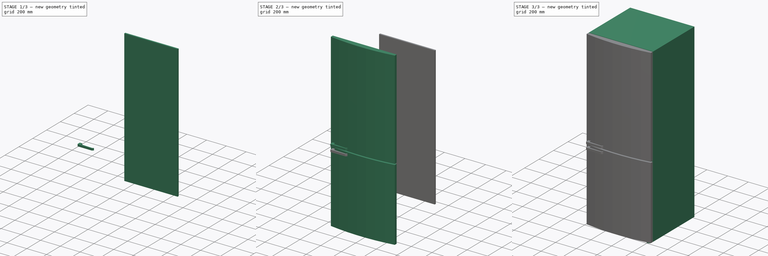
[diagram: build sequence overview — one tinted view per stage of 3, left to right]
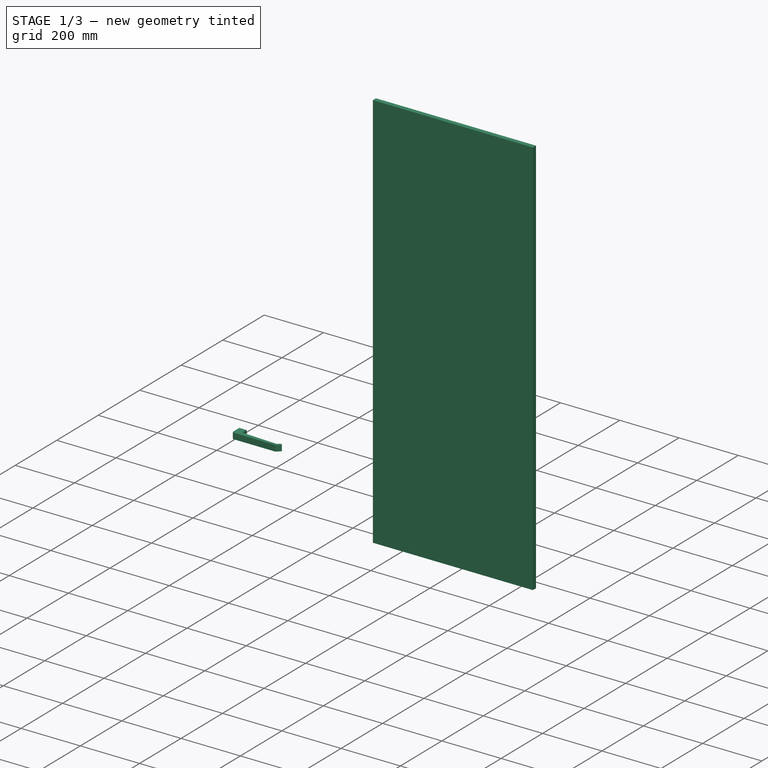
[diagram: stage 1 of 3 — iso view after this stage's code; geometry added in this stage tinted green]
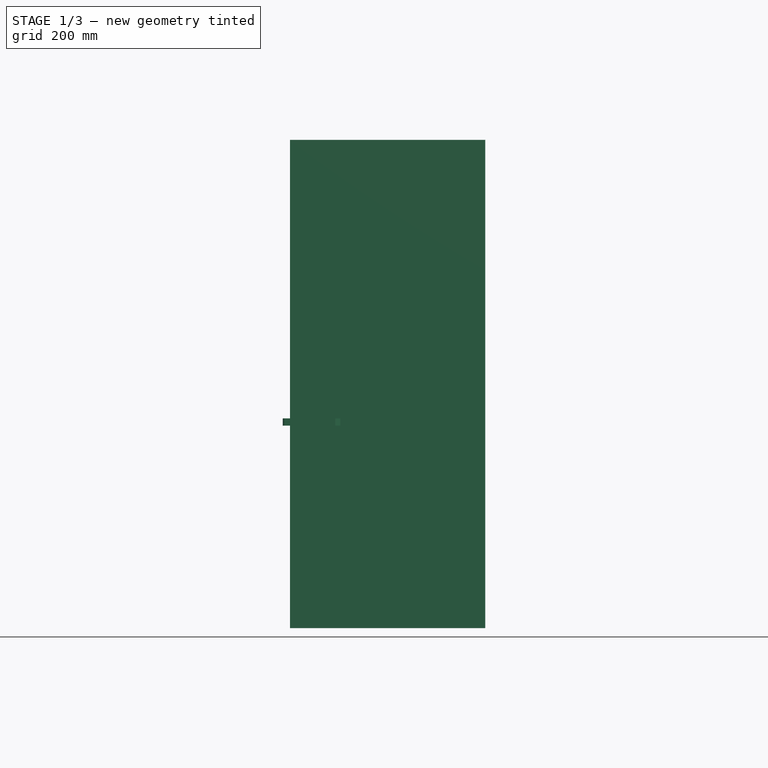
[diagram: stage 1 of 3 — front view after this stage's code; geometry added in this stage tinted green]
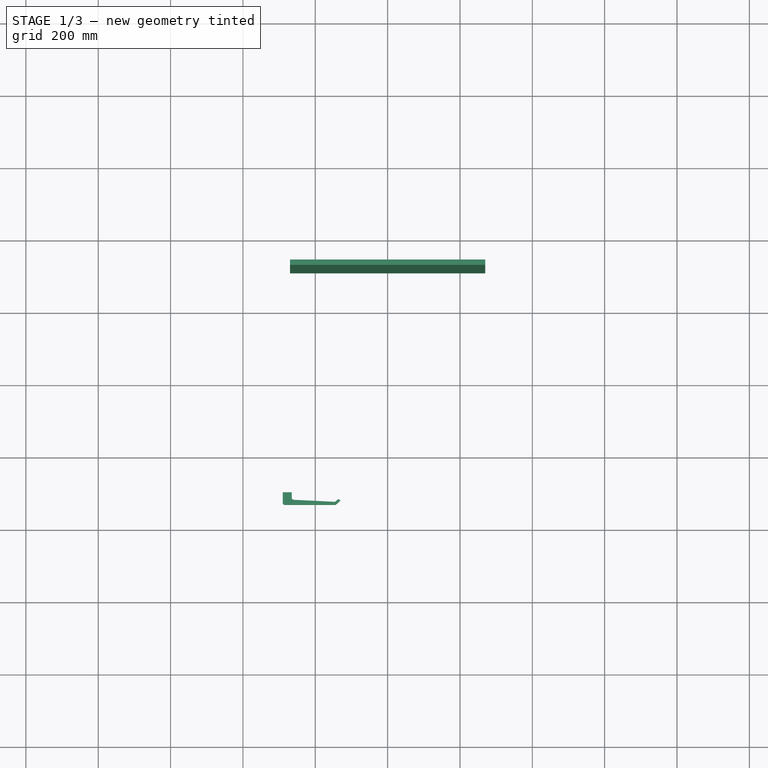
[diagram: stage 1 of 3 — top view after this stage's code; geometry added in this stage tinted green]
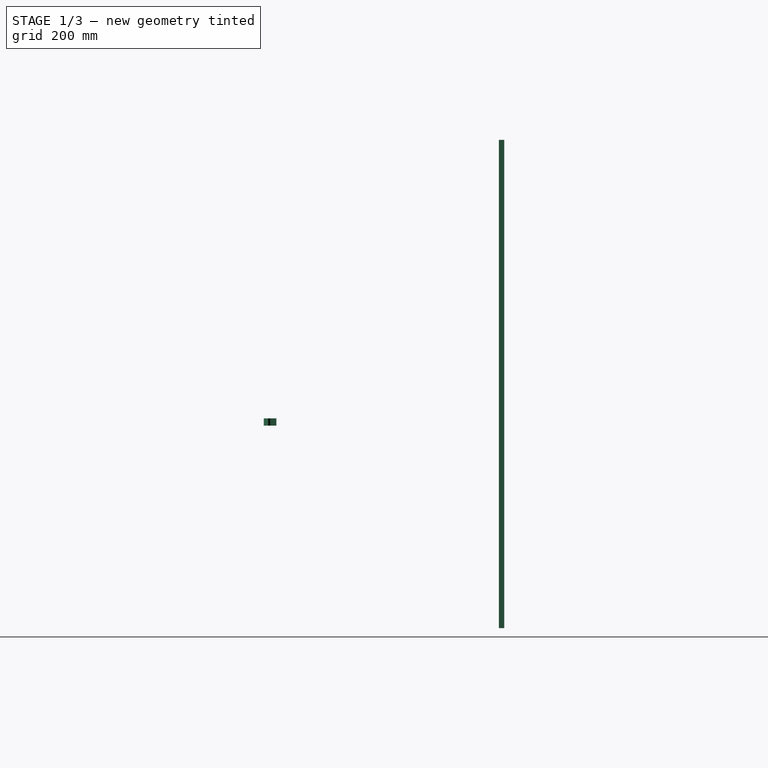
[diagram: stage 1 of 3 — right view after this stage's code; geometry added in this stage tinted green]
FCSTD DOCUMENT  (FreeCAD 0.21R33771 (Git))
Label: Refrigerator_R02
License: All rights reserved
LicenseURL: https://en.wikipedia.org/wiki/All_rights_reserved
objects: App::DocumentObjectGroup×10, App::FeaturePython×7, Part::Extrusion×7, Sketcher::SketchObject×6, App::MaterialObjectPython×5, App::TextDocument×2, App::DocumentObjectGroupPython×1, Spreadsheet::Sheet×1, Part::Feature×1
note: 20 computed .brp shape members not serialized (recipe doc carries the construction recipe); baked Part::Feature solids carry a one-line shape summary decoded from their .brp

FEATURE [Sketcher::SketchObject] Sketch025
  ExternalGeometry = -> [Sketch022]
  FullyConstrained = true
  MapMode = 2
  Support = -> [Sketch022]
  expr: .Constraints.Retreat_1 = Prop.Rear_panel_B_Retreat
  expr: .Constraints.Retreat_2 = Prop.Rear_panel_B_Retreat
  expr: .Constraints.Thickness = Prop.Rear_panel_B_Thickness
  sketch-geometry (4):
    g0: LineSegment StartX=-270 StartY=325 StartZ=0 EndX=270 EndY=325 EndZ=0
    g1: LineSegment StartX=270 StartY=325 StartZ=0 EndX=270 EndY=310 EndZ=0
    g2: LineSegment StartX=270 StartY=310 StartZ=0 EndX=-270 EndY=310 EndZ=0
    g3: LineSegment StartX=-270 StartY=310 StartZ=0 EndX=-270 EndY=325 EndZ=0
  constraints (12):
    c: Coincident(g0,g1)
    c: Coincident(g1,g2)
    c: Coincident(g2,g3)
    c: Coincident(g3,g0)
    c: Horizontal(g0)
    c: Horizontal(g2)
    c: Vertical(g1)
    c: Vertical(g3)
    c: PointOnObject(g0,g-3)
    c: DistanceX(g-3,g0) = 40  'Retreat_1'
    c: DistanceX(g0,g-3) = 40  'Retreat_2'
    c: DistanceY(g1,g1) = 15  'Thickness'
FEATURE [Part::Extrusion] Extrude004  label="06-Rear_"
  Base = -> Sketch025
  Dir = (0,0,1)
  DirMode = 2
  FaceMakerClass = Part::FaceMakerBullseye
  LengthFwd = 1350
  LengthRev = 0
  Material = -> Material014
  Placement = pos=(0,0,150) rot=(0,0,1;0rad)
  Solid = true
  Symmetric = false
  expr: LengthFwd = Prop.Base_dimensions_B_Height - .Placement.Base.z - 200 mm
  expr: Material = Prop.Rear_panel_C_Material
  expr: Visibility = Prop.Visualization_A_Visualization
FEATURE [Sketcher::SketchObject] Sketch026
  AttachmentOffset = pos=(-290,-305,0) rot=(0,1,0;0rad)
  FullyConstrained = true
  MapMode = 2
  Placement = pos=(-290,-305,0) rot=(0,0,1;0rad)
  Support = -> [Sketch022]
  expr: .AttachmentOffset.Base.x = -Prop.Base_dimensions_B_Width / 2 + Prop.Handles_B_Position_horizontal
  expr: .AttachmentOffset.Base.y = -Prop.Base_dimensions_B_Depth / 2 - Prop.Handles_B_Position_depth
  expr: MapReversed = Prop.Handles_A_Right_position
  sketch-geometry (14):
    g0: LineSegment StartX=0 StartY=0 StartZ=0 EndX=25 EndY=0 EndZ=0
    g1: LineSegment StartX=25 StartY=0 StartZ=0 EndX=25 EndY=-15.0072 EndZ=0
    g2: LineSegment StartX=30.7069 StartY=-21 StartZ=0 EndX=142.573 EndY=-26.4712 EndZ=0
    g3: LineSegment StartX=146.869 StartY=-24.9484 StartZ=0 EndX=153.127 EndY=-19.3453 EndZ=0
    g4: LineSegment StartX=144 StartY=-35 StartZ=0 EndX=6 EndY=-35 EndZ=0
    g5: LineSegment StartX=0 StartY=-29 StartZ=0 EndX=0 EndY=0 EndZ=0
    g6: LineSegment StartX=148.002 StartY=-33.4701 StartZ=0 EndX=159.178 EndY=-23.4644 EndZ=0
    g7: LineSegment StartX=158.997 StartY=-21.846 StartZ=0 EndX=154.281 EndY=-19.2168 EndZ=0
    g8: ArcOfCircle CenterX=6 CenterY=-29 CenterZ=0 NormalX=0 NormalY=0 NormalZ=1 AngleXU=0 Radius=6 StartAngle=3.14159 EndAngle=4.71239
    g9: ArcOfCircle CenterX=31 CenterY=-15.0072 CenterZ=0 NormalX=0 NormalY=0 NormalZ=1 AngleXU=0 Radius=6 StartAngle=3.14159 EndAngle=4.66352
    g10: ArcOfCircle CenterX=142.866 CenterY=-20.4783 CenterZ=0 NormalX=0 NormalY=0 NormalZ=1 AngleXU=0 Radius=6 StartAngle=4.66352 EndAngle=5.44262
    g11: ArcOfCircle CenterX=144 CenterY=-29 CenterZ=0 NormalX=0 NormalY=0 NormalZ=1 AngleXU=0 Radius=6 StartAngle=4.71239 EndAngle=5.44262
    g12: ArcOfCircle CenterX=153.794 CenterY=-20.0903 CenterZ=0 NormalX=0 NormalY=0 NormalZ=1 AngleXU=0 Radius=1 StartAngle=1.06229 EndAngle=2.30103
    g13: ArcOfCircle CenterX=158.51 CenterY=-22.7194 CenterZ=0 NormalX=0 NormalY=0 NormalZ=1 AngleXU=0 Radius=1 StartAngle=5.44262 EndAngle=7.34547
  constraints (36):
    c: Horizontal(g0)
    c: Coincident(g0,g1)
    c: Vertical(g1)
    c: Horizontal(g4)
    c: Coincident(g5,g0)
    c: Vertical(g5)
    c: Tangent(g5,g8) = 1.5708
    c: Tangent(g4,g8) = 1.5708
    c: Tangent(g1,g9) = -1.5708
    c: Tangent(g2,g9) = -1.5708
    c: Tangent(g2,g10) = -1.5708
    c: Tangent(g3,g10) = -1.5708
    c: Tangent(g4,g11) = 1.5708
    c: Tangent(g6,g11) = -1.5708
    c: Tangent(g3,g12) = 1.5708
    c: Tangent(g7,g12) = -1.5708
    c: Tangent(g6,g13) = -1.5708
    c: Tangent(g7,g13) = -1.5708
    c: DistanceX(g0,g0) = 25
    c: Equal(g8,g11)
    c: Radius(g8) = 6
    c: Equal(g12,g13)
    c: Radius(g12) = 1
    c: Equal(g10,g9)
    c: Radius(g10) = 6
    c: DistanceY(g4,g0) = 35  'Width'
    c: Angle(g2) = -0.0488692
    c: DistanceY(g2,g0) = 21
    c: Distance(g2) = 112
    c: Distance(g3) = 8.4
    c: Distance(g6) = 15
    c: Distance(g7) = 5.4
    c: Parallel(g3,g6)
    c: Coincident(g0,g-1)
    c: DistanceX(g5,g6) = 159.178  'Lenght'
    c: DistanceX(g4,g4) = 138
FEATURE [Part::Extrusion] Extrude005  label="05-Handle_01_"
  Base = -> Sketch026
  Dir = (0,0,1)
  DirMode = 2
  FaceMakerClass = Part::FaceMakerBullseye
  LengthFwd = 20
  LengthRev = 0
  Material = -> Material014
  Placement = pos=(0,0,720) rot=(0,1,0;0rad)
  Solid = true
  Symmetric = true
  expr: .Placement.Base.z = Prop.Front_panels_B_Inferior_panels_height + Prop.Feet_B_Height - LengthFwd / 2 - Prop.Handles_B_Position_vertical_inferior_handles
  expr: Material = Prop.Handles_C_Material
  expr: Visibility = Prop.Visualization_A_Visualization
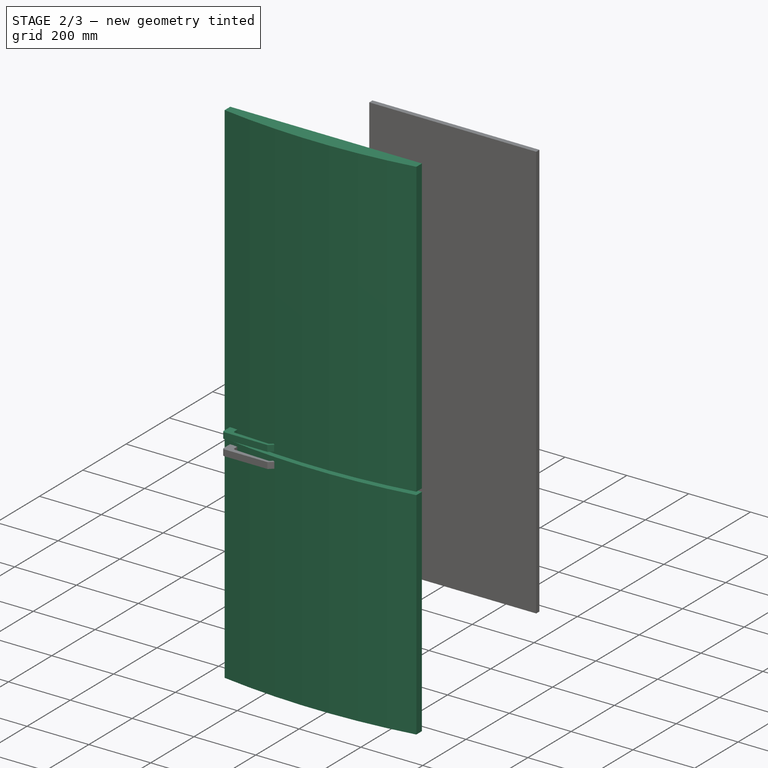
[diagram: stage 2 of 3 — iso view after this stage's code; geometry added in this stage tinted green]
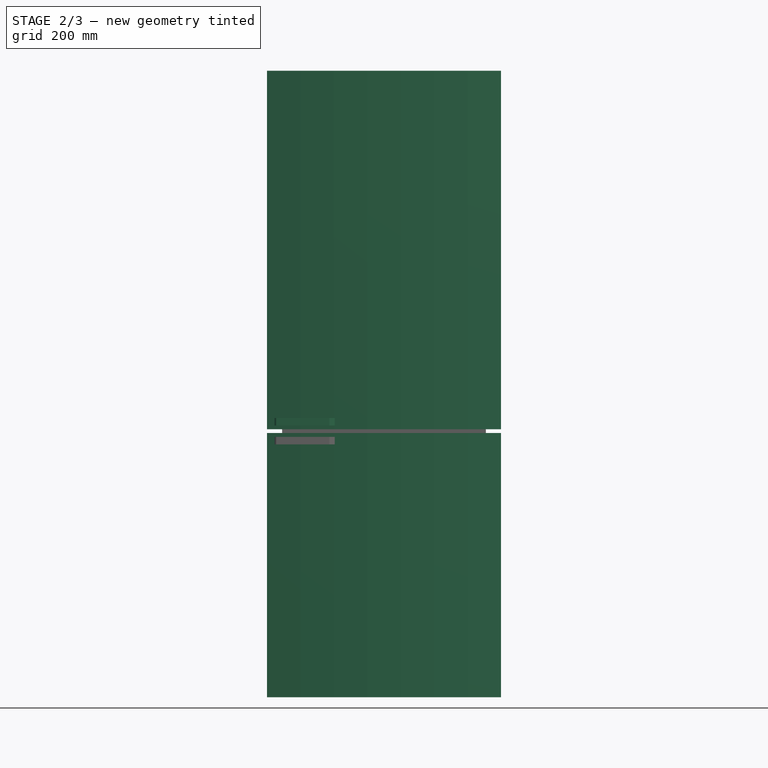
[diagram: stage 2 of 3 — front view after this stage's code; geometry added in this stage tinted green]
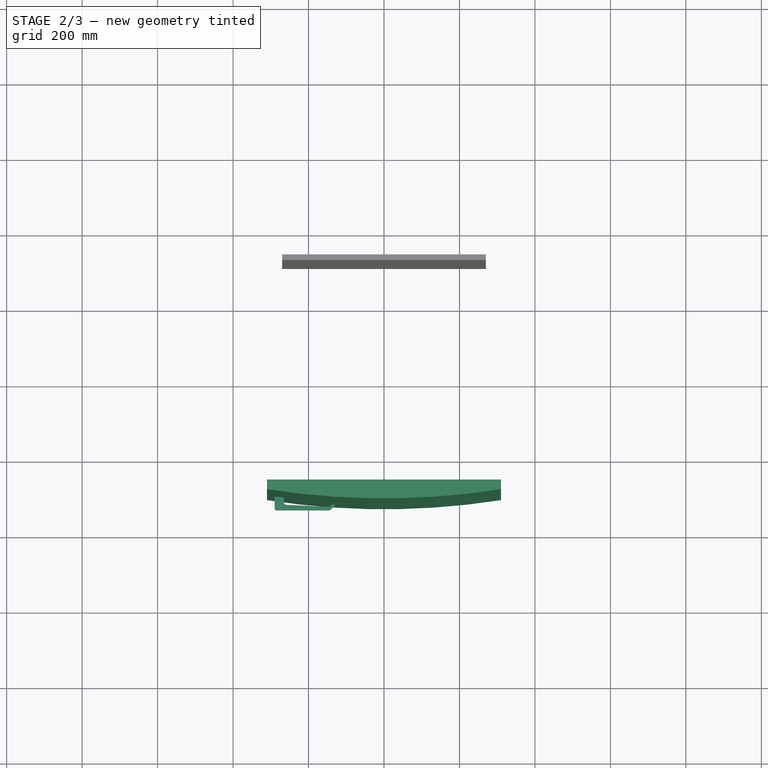
[diagram: stage 2 of 3 — top view after this stage's code; geometry added in this stage tinted green]
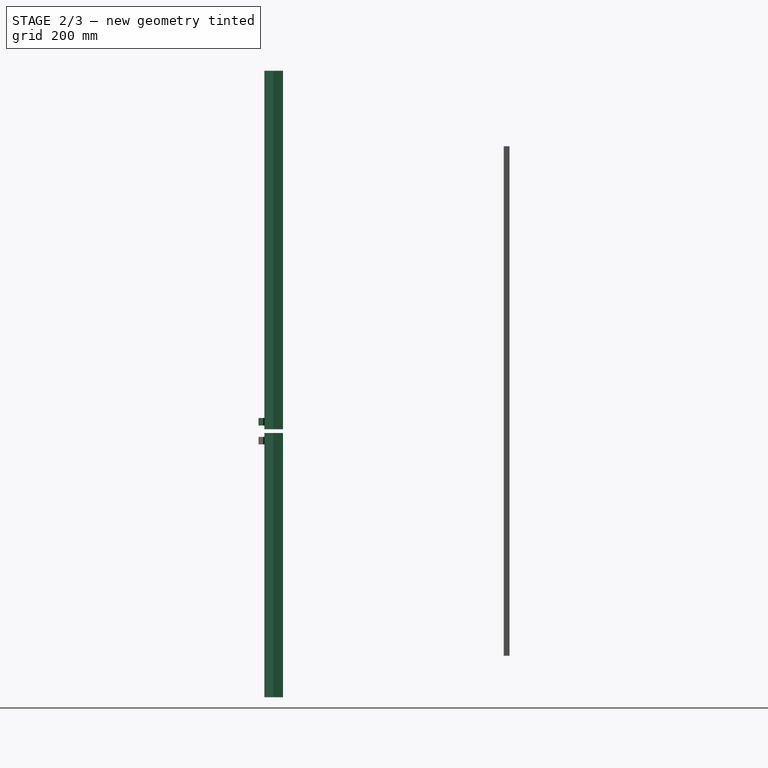
[diagram: stage 2 of 3 — right view after this stage's code; geometry added in this stage tinted green]
FEATURE [Part::Extrusion] Extrude006  label="05-Handle_02"
  Base = -> Sketch026
  Dir = (0,0,1)
  DirMode = 2
  FaceMakerClass = Part::FaceMakerBullseye
  LengthFwd = 20
  LengthRev = 0
  Material = -> Material014
  Placement = pos=(0,0,770) rot=(0,1,0;0rad)
  Solid = true
  Symmetric = true
  expr: .Placement.Base.z = Prop.Front_panels_B_Inferior_panels_height + Prop.Feet_B_Height + Prop.Front_panels_B_Gap_between_panels + LengthFwd / 2 + Prop.Handles_B_Position_vertical_superior_handles
  expr: Material = Prop.Handles_C_Material
  expr: Visibility = Prop.Visualization_A_Visualization
FEATURE [Sketcher::SketchObject] Sketch027
  ExternalGeometry = -> [Sketch022]
  FullyConstrained = true
  MapMode = 2
  Support = -> [Sketch022]
  expr: .Constraints.Thickness = Prop.Front_panels_B_Thickness
  sketch-geometry (4):
    g0: LineSegment StartX=310 StartY=-300.829 StartZ=0 EndX=310 EndY=-275 EndZ=0
    g1: LineSegment StartX=310 StartY=-275 StartZ=0 EndX=-310 EndY=-275 EndZ=0
    g2: LineSegment StartX=-310 StartY=-275 StartZ=0 EndX=-310 EndY=-300.829 EndZ=0
    g3: ArcOfCircle CenterX=0 CenterY=1675 CenterZ=0 NormalX=0 NormalY=0 NormalZ=1 AngleXU=0 Radius=2000 StartAngle=4.55676 EndAngle=4.86802
  constraints (13):
    c: Coincident(g0,g1)
    c: Coincident(g1,g2)
    c: Horizontal(g1)
    c: Vertical(g0)
    c: Vertical(g2)
    c: PointOnObject(g0,g-4)
    c: PointOnObject(g3,g-2)
    c: Coincident(g3,g2)
    c: Coincident(g3,g0)
    c: PointOnObject(g1,g-3)
    c: Radius(g3) = 2000  'Raius'
    c: Tangent(g3,g-5)
    c: DistanceY(g-5,g0) = 50  'Thickness'
FEATURE [Part::Extrusion] Extrude007  label="02-Front_inferior_panel_02"
  Base = -> Sketch027
  Dir = (0,0,1)
  DirMode = 2
  FaceMakerClass = Part::FaceMakerBullseye
  LengthFwd = 700
  LengthRev = 0
  Material = -> Material042
  Placement = pos=(0,0,40) rot=(0,0,1;0rad)
  Solid = true
  Symmetric = false
  expr: .Placement.Base.z = Prop.Feet_B_Height
  expr: LengthFwd = Prop.Front_panels_B_Inferior_panels_height
  expr: Material = Prop.Front_panels_C_Material
  expr: Visibility = Prop.Visualization_A_Visualization
FEATURE [Part::Extrusion] Extrude008  label="03-Front_superior_panel_02"
  Base = -> Sketch027
  Dir = (0,0,1)
  DirMode = 2
  FaceMakerClass = Part::FaceMakerBullseye
  LengthFwd = 950
  LengthRev = 0
  Material = -> Material042
  Placement = pos=(0,0,750) rot=(0,0,1;0rad)
  Solid = true
  Symmetric = false
  expr: .Placement.Base.z = Prop.Feet_B_Height + Prop.Front_panels_B_Inferior_panels_height + Prop.Front_panels_B_Gap_between_panels
  expr: LengthFwd = Prop.Base_dimensions_B_Height - (Prop.Feet_B_Height + Prop.Front_panels_B_Inferior_panels_height + Prop.Front_panels_B_Gap_between_panels)
  expr: Material = Prop.Front_panels_C_Material
  expr: Visibility = Prop.Visualization_A_Visualization
FEATURE [Spreadsheet::Sheet] Spreadsheet003  label="Refrigerator_outputs_#_"
  cells = A1='Description:; A2==<<Refrigerator of %s x %s x %s>> % tuple(Prop.Base_dimensions_B_Width; Prop.Base_dimensions_B_Depth; Prop.Base_dimensions_B_Height) + << in width, depth and height, compound of a body of %s>> % Prop.Body_C_Material.Label + <<, two front doors of %s>> % Prop.Front_panels_C_Material.Label + <<, and handles of %s>> % Prop.Handles_C_Material.Label + <<.>>; A4='Parts; B4='L; C4='H; D4='W; E4='T; F4='D; G4='Depth; H4='Materials; I4='Quantities; A5='01-Body; C5==Prop.Base_dimensions_B_Height - Prop.Feet_B_Height; D5==Prop.Base_dimensions_B_Width; G5==Prop.Base_dimensions_B_Depth; H5==Prop.Body_C_Material.Label; I5=1; A6='02-Inferior front panels; C6==Prop.Front_panels_B_Inferior_panels_height; D6==Prop.Base_dimensions_B_Width; E6==Prop.Front_panels_B_Thickness; H6==Prop.Front_panels_C_Material.Label; I6=1; A7='03-Superior front panels; C7==Prop.Base_dimensions_B_Height - (Prop.Feet_B_Height + Prop.Front_panels_B_Inferior_panels_height + Prop.Front_panels_B_Gap_between_panels); D7==Prop.Base_dimensions_B_Height - (Prop.Feet_B_Height + Prop.Front_panels_B_Inferior_panels_height + Prop.Front_panels_B_Gap_between_panels); E7==Prop.Front_panels_B_Thickness; H7==Prop.Front_panels_C_Material.Label; I7=1; A8='04-Feet; C8==Prop.Feet_B_Height; F8==Sketch024.Constraints.Radius * 2; H8==Prop.Feet_C_Material.Label; I8=4; A9='05-Panel handles; B9==Sketch026.Constraints.Lenght; C9==Extrude005.LengthFwd; D9==Sketch026.Constraints.Width; H9==Prop.Handles_C_Material.Label; I9=2; A10='06-Rear panel; C10==Prop.Base_dimensions_B_Height - Extrude004.Placement.Base.z - 200 mm; D10==Prop.Base_dimensions_B_Width - Sketch025.Constraints.Retreat_1 - Sketch025.Constraints.Retreat_2; E10==Prop.Rear_panel_B_Thickness; H10==Prop.Rear_panel_C_Material.Label; I10=1
FEATURE [App::TextDocument] Text_document  label="Guidelines_refrigerator_file_configurations_"
  Text = Some guidelines for using this component file.\n-----------------------------------------\n\n1. Basic workflow for component configuration (see video)\n\nThrough the properties window ("01-Prop_Refrigerator_configurations_#_") it is possible to configure the basic dimensions of the component (height, length, and depth) and its parts such as panels (inferior, superior, and rear), and handles, as well their respective materials.\n\n2. Component insertion\n\nOpen the "02-Elements_to_move_rotate" folder and select the "Refrigerator_base_move_rotate_#_" Sketch. If you are going to use the 2D projections of the component in your project, also select the sections from the “Sections” folder as needed (for plans, sections, and views).\n\nDrag the selection to the final insertion position of the component in the project, rotating it later if necessary. Make new configurations of the component if necessary.\n\n3. To generate the corresponding 2D projections, use the pre-established sections by adding the necessary objects to them and click on "Shape 2D view" (Draft_Shape2DView).\n\n4. Cautions:\n\n4.1. Set dimensions and quantities close to those used in reality, otherwise it could destroy the structure of a piece or the assembly itself.\n\n4.2. Where applicable, one of the main considerations when configuring arrays is to avoid accidentally assign large values ​​(hundreds or thousands) for the quantities of parts of the part, for example.\n\n4.4. When searching for a profile or material, use the folder according to the type one is looking for, this will make the task much easier. Materials, for example, are organized into different groups (see video).
FEATURE [App::TextDocument] Text_document001  label="Guidelines_new_objects_properties_"
  Text = <blob: 2847 chars omitted>
FEATURE [App::DocumentObjectGroup] Group248  label="03-Component_parts_"
  Group = -> [Extrude,Extrude007,Extrude008,Extrude003,Extrude005,Extrude006,Extrude004]
FEATURE [App::FeaturePython] Section  label="Section_Plan_01"  # WARN: FeaturePython — macro-defined, semantics opaque (R4)
  Clip = false
  Depth = 0
  Objects = -> [Group248]
  OnlySolids = true
  Placement = pos=(0,0,500) rot=(0,0,1;0rad)
  UseMaterialColorForFill = false
FEATURE [App::FeaturePython] Section001  label="Section001_Plan_02"  # WARN: FeaturePython — macro-defined, semantics opaque (R4)
  Clip = false
  Depth = 0
  Objects = -> [Group248]
  OnlySolids = true
  Placement = pos=(0,0,2100) rot=(0,0,1;0rad)
  UseMaterialColorForFill = false
FEATURE [App::FeaturePython] Section002  label="Section002_Lateral_01"  # WARN: FeaturePython — macro-defined, semantics opaque (R4)
  Clip = false
  Depth = 0
  Objects = -> [Group248]
  OnlySolids = true
  Placement = pos=(1500,0,600) rot=(0.57735,0.57735,0.57735;2.0944rad)
  UseMaterialColorForFill = false
FEATURE [App::FeaturePython] Section003  label="Section003_Transversal"  # WARN: FeaturePython — macro-defined, semantics opaque (R4)
  Clip = false
  Depth = 0
  Objects = -> [Group248]
  OnlySolids = true
  Placement = pos=(0,0,600) rot=(0.57735,0.57735,0.57735;2.0944rad)
  UseMaterialColorForFill = false
FEATURE [App::FeaturePython] Section004  label="Section004_Lateral_02"  # WARN: FeaturePython — macro-defined, semantics opaque (R4)
  Clip = false
  Depth = 0
  Objects = -> [Group248]
  OnlySolids = true
  Placement = pos=(-1500,0,600) rot=(-0.57735,0.57735,0.57735;4.18879rad)
  UseMaterialColorForFill = false
FEATURE [App::FeaturePython] Section005  label="Section005_Frontal_"  # WARN: FeaturePython — macro-defined, semantics opaque (R4)
  Clip = false
  Depth = 0
  Objects = -> [Group248]
  OnlySolids = true
  Placement = pos=(0,-1300,600) rot=(1,0,0;1.5708rad)
  UseMaterialColorForFill = false
FEATURE [App::DocumentObjectGroup] Group001  label="Section"
  Group = -> [Section,Section001,Section002,Section003,Section004,Section005]
FEATURE [App::DocumentObjectGroup] Group247  label="02-Elements_to_move_rotate"
  Group = -> [Sketch022,Group001]
FEATURE [App::DocumentObjectGroup] Group249  label="04-Spreadsheet_"
  Group = -> [Spreadsheet003]
FEATURE [App::DocumentObjectGroup] Group250  label="05-Guidelines_"
  Group = -> [Text_document001,Text_document]
FEATURE [App::DocumentObjectGroup] Group251  label="06-Materials_"
  Group = -> [MaterialContainer]
FEATURE [Part::Feature] Prop  label="01-Prop_Refrigerator_configurations_#_"
  Base_dimensions_B_Depth = 650
  Base_dimensions_B_Height = 1700
  Base_dimensions_B_Width = 620
  Body_C_Material = -> Material042
  Feet_B_Height = 40
  Feet_C_Material = -> Material014
  Front_panels_B_Gap_between_panels = 10
  Front_panels_B_Inferior_panels_height = 700
  Front_panels_B_Thickness = 50
  Front_panels_C_Material = -> Material042
  Handles_A_Right_position = false
  Handles_B_Position_depth = -20
  Handles_B_Position_horizontal = 20
  Handles_B_Position_vertical_inferior_handles = 10
  Handles_B_Position_vertical_superior_handles = 10
  Handles_C_Material = -> Material014
  Rear_panel_B_Retreat = 40
  Rear_panel_B_Thickness = 15
  Rear_panel_C_Material = -> Material014
  Visualization_A_Visualization = true
FEATURE [App::DocumentObjectGroup] Group  label="Refrigerator_#_"
  Group = -> [Prop,Group247,Group248,Group249,Group250,Group251]
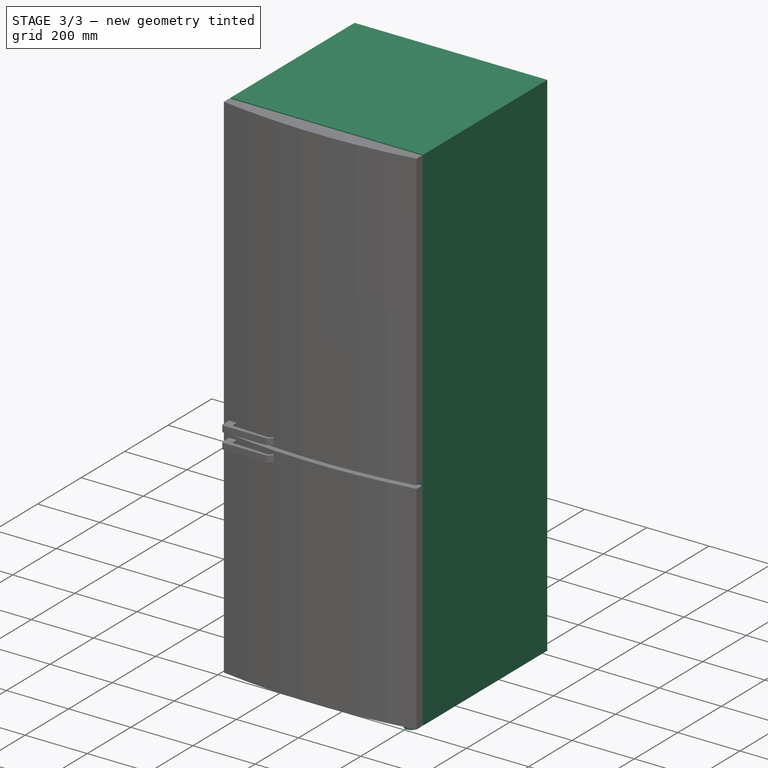
[diagram: stage 3 of 3 — iso view after this stage's code; geometry added in this stage tinted green]
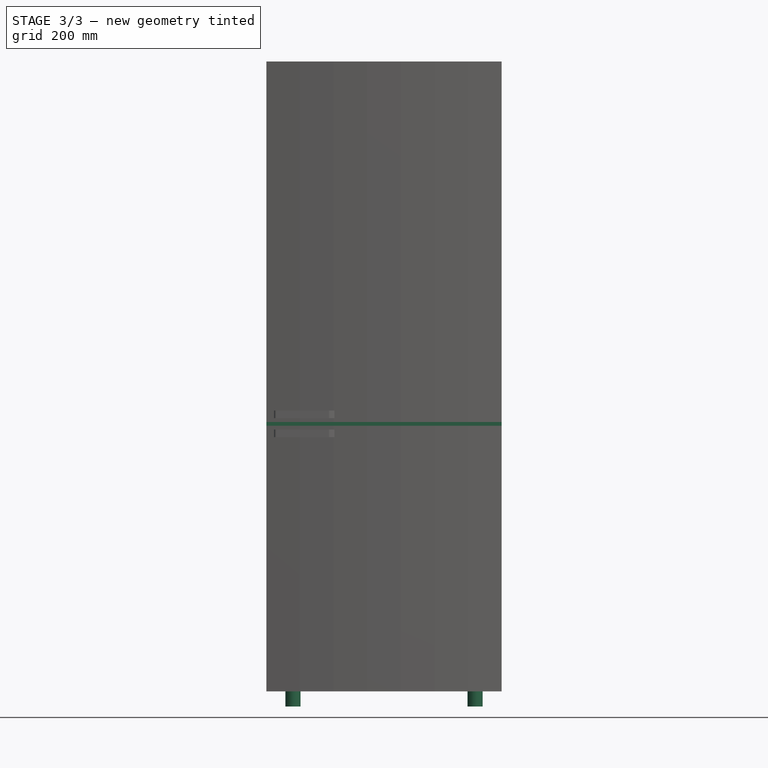
[diagram: stage 3 of 3 — front view after this stage's code; geometry added in this stage tinted green]
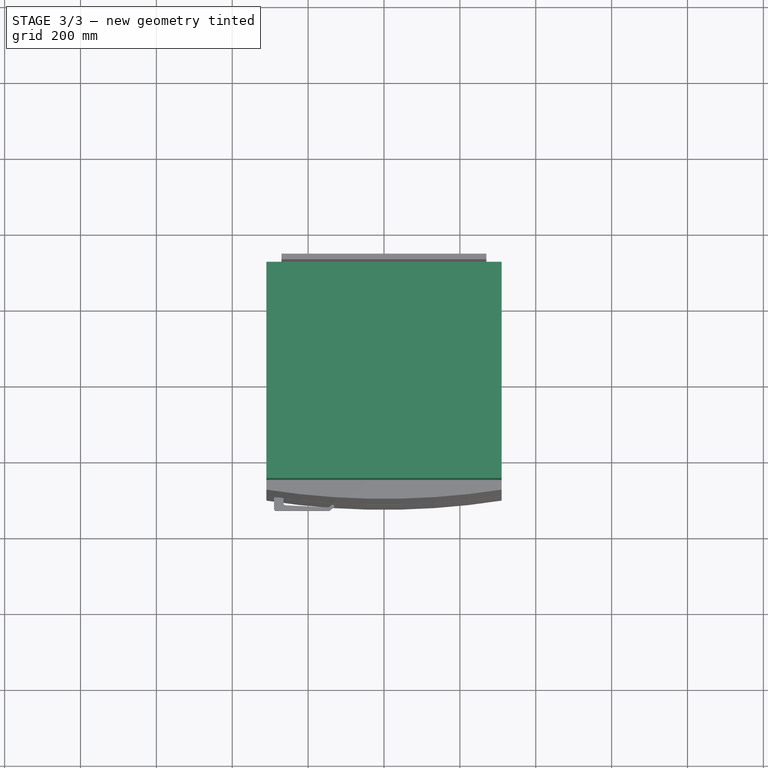
[diagram: stage 3 of 3 — top view after this stage's code; geometry added in this stage tinted green]
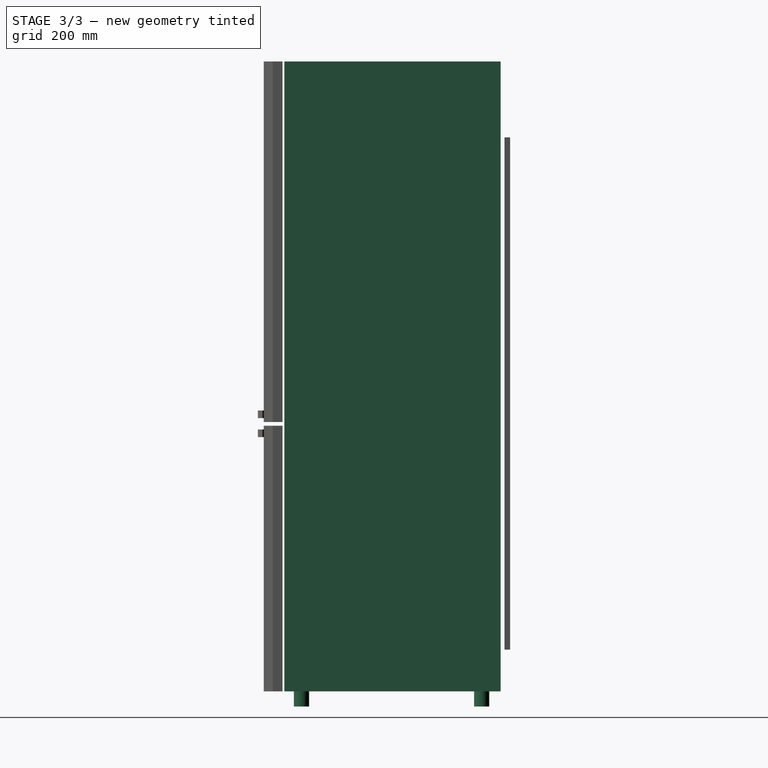
[diagram: stage 3 of 3 — right view after this stage's code; geometry added in this stage tinted green]
FEATURE [App::MaterialObjectPython] Material  label="aluminium"  # material (typed FeaturePython)
  Description = Aluminium Material for Render
  Material = <blob: 2719 chars omitted>
  Transparency = 0
FEATURE [App::MaterialObjectPython] Material022  label="RenderGlass"  # material (typed FeaturePython)
  Description = Glass Material for Render
  Material = Color=(0.8, 0.8, 0.8, 1.0); Description=Glass Material for Render; DiffuseColor=(0.8, 0.8, 0.8, 1.0); Name=RenderGlass; Render.ForceUVMap=False; Render.Glass.Color=(1.0,1.0,1.0); Render.Glass.IOR=1.7; Render.Type=Glass; SectionColor=(0.8, 0.8, 0.8, 1.0); Transparency=0; UseObjectColor=True; ViewColor=(0.8, 0.8, 0.8, 1.0)
  Transparency = 0
FEATURE [App::DocumentObjectGroup] Group230  label="Glass_"
  Group = -> [Material022]
FEATURE [App::MaterialObjectPython] Material041  label="white plastic"  # material (typed FeaturePython)
  Description = Glossy Plastic Material for Render
  Material = Color=(0.8, 0.8, 0.8, 1.0); Description=Glossy Plastic Material for Render; DiffuseColor=(0.8, 0.8, 0.8, 1.0); Name=white plastic; Render.Disney.Anisotropic=0.0; Render.Disney.BaseColor=(1.0,1.0,1.0); Render.Disney.ClearCoat=0.0; Render.Disney.ClearCoatGloss=0.0; Render.Disney.Metallic=0.0; Render.Disney.Roughness=0.1; Render.Disney.Sheen=0.0; Render.Disney.SheenTint=0.0; Render.Disney.Specular=0.5; Render.Disney.SpecularTint=0.0; Render.Disney.Subsurface=0.0; Render.ForceUVMap=False; Render.Ospray.0001=# use coat instead of specular; Render.Ospray.0002=type principled; Render.Ospray.0003=baseColor %RED% %GREEN% %BLUE%; Render.Ospray.0004=roughness 0.4; Render.Ospray.0005=coat 0.8; Render.Ospray.0006=coatRoughness 0.1; Render.Pbrt.0001=Material "coateddiffuse"; Render.Pbrt.0002="rgb reflectance" [ %RED% %GREEN% %BLUE% ]; Render.Pbrt.0003="float roughness" [ 0.1 ]; Render.Type=Disney; SectionColor=(0.8, 0.8, 0.8, 1.0); Transparency=0; UseObjectColor=True; ViewColor=(0.8, 0.8, 0.8, 1.0)
  Transparency = 0
FEATURE [App::MaterialObjectPython] Material042  label="stainless steel"  # material (typed FeaturePython)
  Description = Iron Material for Render
  Material = Color=(0.7686274509803922, 0.7803921568627451, 0.7803921568627451, 1.0); Description=Iron Material for Render; DiffuseColor=(0.7686274509803922, 0.7803921568627451, 0.7803921568627451, 1.0); Name=stainless steel; Render.Disney.Anisotropic=0.0; Render.Disney.BaseColor=(0.77, 0.78, 0.78); Render.Disney.ClearCoat=0.0; Render.Disney.ClearCoatGloss=0.0; Render.Disney.Metallic=1.0; Render.Disney.Roughness=0.3; Render.Disney.Sheen=0.0; Render.Disney.SheenTint=0.0; Render.Disney.Specular=0.0; Render.Disney.SpecularTint=0.0; Render.Disney.Subsurface=0.0; Render.Ospray.0001=type metal; Render.Ospray.0002=# from refractiveindex.info, for wl 700, 550, 450; Render.Ospray.0003=eta 2.8653 2.9497 2.5845; Render.Ospray.0004=k 3.1820 2.9318 2.7670; Render.Ospray.0005=roughness 0.1; Render.Pbrt.0001=Material "conductor"; Render.Pbrt.0002="spectrum eta" [ "metal-Ag-eta" ]; Render.Pbrt.0003="spectrum k" [ "metal-Ag-k" ]; Render.Pbrt.0004="float roughness" [ 0.01 ]; Render.Povray.0001=finish {; Render.Povray.0002=brilliance 4; Render.Povray.0003=diffuse 0; Render.Povray.0004=ambient <0.77 0.78 0.78>; Render.Povray.0005=reflection <0.77 0.78 0.78>; Render.Povray.0006=metallic 1; Render.Povray.0007=specular 0.60; Render.Povray.0008=roughness 1/20; Render.Povray.0009=}; Render.Type=Disney; SectionColor=(0.7686274509803922, 0.7803921568627451, 0.7803921568627451, 1.0); Transparency=0; UseObjectColor=False; ViewColor=(0.7686274509803922, 0.7803921568627451, 0.7803921568627451, 1.0)
  Transparency = 0
FEATURE [App::DocumentObjectGroup] Group229  label="Metal_"
  Group = -> [Material,Material042]
FEATURE [Sketcher::SketchObject] Sketch022  label="Refrigerator_base_move_rotate_#_"
  FullyConstrained = true
  expr: .Constraints.Depth = Prop.Base_dimensions_B_Depth
  expr: .Constraints.Width = Prop.Base_dimensions_B_Width
  expr: Constraints[33] = Prop.Front_panels_B_Thickness
  sketch-geometry (12):
    g0: LineSegment StartX=-310 StartY=325 StartZ=0 EndX=310 EndY=325 EndZ=0
    g1: LineSegment StartX=310 StartY=325 StartZ=0 EndX=310 EndY=-325 EndZ=0
    g2: LineSegment StartX=310 StartY=-325 StartZ=0 EndX=-310 EndY=-325 EndZ=0
    g3: LineSegment StartX=-310 StartY=-325 StartZ=0 EndX=-310 EndY=325 EndZ=0
    g4: LineSegment StartX=-410 StartY=425 StartZ=0 EndX=410 EndY=425 EndZ=0
    g5: LineSegment StartX=410 StartY=425 StartZ=0 EndX=410 EndY=-425 EndZ=0
    g6: LineSegment StartX=410 StartY=-425 StartZ=0 EndX=-410 EndY=-425 EndZ=0
    g7: LineSegment StartX=-410 StartY=-425 StartZ=0 EndX=-410 EndY=425 EndZ=0
    g8: Circle CenterX=0 CenterY=0 CenterZ=0 NormalX=0 NormalY=0 NormalZ=1 AngleXU=0 Radius=50
    g9: LineSegment StartX=-410 StartY=0 StartZ=0 EndX=410 EndY=0 EndZ=0
    g10: LineSegment StartX=0 StartY=425 StartZ=0 EndX=0 EndY=-425 EndZ=0
    g11: LineSegment StartX=-310 StartY=-275 StartZ=0 EndX=310 EndY=-275 EndZ=0
  constraints (34):
    c: Coincident(g0,g1)
    c: Coincident(g1,g2)
    c: Coincident(g2,g3)
    c: Coincident(g3,g0)
    c: Horizontal(g2)
    c: Vertical(g1)
    c: DistanceX(g2,g2) = 620  'Width'
    c: DistanceY(g3,g3) = 650  'Depth'
    c: Symmetric(g0,g0,g-2)
    c: Symmetric(g0,g2,g-1)
    c: Coincident(g4,g5)
    c: Coincident(g5,g6)
    c: Coincident(g6,g7)
    c: Coincident(g7,g4)
    c: Horizontal(g6)
    c: Vertical(g7)
    c: Symmetric(g4,g4,g-2)
    c: Symmetric(g4,g5,g-1)
    c: DistanceX(g4,g0) = 100
    c: DistanceY(g0,g4) = 100
    c: Coincident(g8,g-1)
    c: Diameter(g8) = 100
    c: PointOnObject(g9,g7)
    c: PointOnObject(g9,g5)
    c: Horizontal(g9)
    c: PointOnObject(g10,g4)
    c: PointOnObject(g10,g6)
    c: Vertical(g10)
    c: PointOnObject(g10,g-2)
    c: PointOnObject(g9,g-1)
    c: PointOnObject(g11,g3)
    c: PointOnObject(g11,g1)
    c: Horizontal(g11)
    c: DistanceY(g1,g11) = 50
FEATURE [App::FeaturePython] Texture011  # WARN: FeaturePython — macro-defined, semantics opaque (R4)
  Rotation = 0
  TranslationU = 0
  TranslationV = 0
FEATURE [App::MaterialObjectPython] Material014  label="black plastic"  # material (typed FeaturePython)
  Group = -> [Texture011]
  Material = Name=black plastic; Render.Disney.Anisotropic=0.0; Render.Disney.BaseColor=0.00784314, 0.00784314, 0.00784314; Render.Disney.ClearCoat=0.0; Render.Disney.ClearCoatGloss=0.8980392217636108; Render.Disney.Metallic=0.0; Render.Disney.Normal=Texture;('Texture011', 'Image', 1.0); Render.Disney.Roughness=0.09803921729326248; Render.Disney.Sheen=0.0; Render.Disney.SheenTint=0.0; Render.Disney.Specular=0.501960813999176; Render.Disney.SpecularTint=0.0; Render.Disney.Subsurface=0.0; Render.Type=Disney; SectionColor=(0.0, 0.0, 0.0); Transparency=0
  Transparency = 0
FEATURE [App::DocumentObjectGroup] Group228  label="Plastic"
  Group = -> [Material014,Material041]
FEATURE [App::DocumentObjectGroupPython] MaterialContainer  label="02-Materials"  # scripted group (container) (typed FeaturePython)
  Group = -> [Group230,Group229,Group228]
FEATURE [Sketcher::SketchObject] Sketch  label="Body_"
  AttachmentOffset = pos=(0,0,40) rot=(0,0,1;0rad)
  ExternalGeometry = -> [Sketch022]
  FullyConstrained = true
  MapMode = 2
  Placement = pos=(0,0,40) rot=(0,0,1;0rad)
  Support = -> [Sketch022]
  expr: .AttachmentOffset.Base.z = Prop.Feet_B_Height
  expr: .Constraints.Rear_retreat = Prop.Rear_panel_B_Thickness + 10 mm
  sketch-geometry (4):
    g0: LineSegment StartX=-310 StartY=300 StartZ=0 EndX=310 EndY=300 EndZ=0
    g1: LineSegment StartX=310 StartY=300 StartZ=0 EndX=310 EndY=-270 EndZ=0
    g2: LineSegment StartX=310 StartY=-270 StartZ=0 EndX=-310 EndY=-270 EndZ=0
    g3: LineSegment StartX=-310 StartY=-270 StartZ=0 EndX=-310 EndY=300 EndZ=0
  constraints (12):
    c: Coincident(g0,g1)
    c: Coincident(g1,g2)
    c: Coincident(g2,g3)
    c: Coincident(g3,g0)
    c: Horizontal(g2)
    c: Vertical(g1)
    c: Vertical(g3)
    c: PointOnObject(g0,g-4)
    c: Horizontal(g0)
    c: PointOnObject(g0,g-3)
    c: DistanceY(g0,g-4) = 25  'Rear_retreat'
    c: DistanceY(g-4,g1) = 55  'Front_retreat'
FEATURE [Part::Extrusion] Extrude  label="01-Body_"
  Base = -> Sketch
  Dir = (0,0,1)
  DirMode = 2
  FaceMakerClass = Part::FaceMakerBullseye
  LengthFwd = 1660
  LengthRev = 0
  Material = -> Material042
  Solid = true
  Symmetric = false
  expr: LengthFwd = Prop.Base_dimensions_B_Height - Prop.Feet_B_Height
  expr: Material = Prop.Body_C_Material
  expr: Visibility = Prop.Visualization_A_Visualization
FEATURE [Sketcher::SketchObject] Sketch024
  ExternalGeometry = -> [Sketch022]
  FullyConstrained = true
  MapMode = 2
  Support = -> [Sketch022]
  expr: Constraints[9] = Prop.Rear_panel_B_Thickness + 10 mm + 50 mm
  sketch-geometry (4):
    g0: Circle CenterX=-240 CenterY=250 CenterZ=0 NormalX=0 NormalY=0 NormalZ=1 AngleXU=0 Radius=20
    g1: Circle CenterX=-240 CenterY=-225 CenterZ=0 NormalX=0 NormalY=0 NormalZ=1 AngleXU=0 Radius=20
    g2: Circle CenterX=240 CenterY=-225 CenterZ=0 NormalX=0 NormalY=0 NormalZ=1 AngleXU=0 Radius=20
    g3: Circle CenterX=240 CenterY=250 CenterZ=0 NormalX=0 NormalY=0 NormalZ=1 AngleXU=0 Radius=20
  constraints (12):
    c: Equal(g0,g3)
    c: Equal(g0,g2)
    c: Equal(g0,g1)
    c: Radius(g0) = 20  'Radius'
    c: Vertical(g0,g1)
    c: Horizontal(g0,g3)
    c: Vertical(g3,g2)
    c: Horizontal(g1,g2)
    c: DistanceX(g-3,g0) = 70
    c: DistanceY(g3,g-4) = 75
    c: DistanceY(g-3,g1) = 100
    c: DistanceX(g3,g-4) = 70
FEATURE [Part::Extrusion] Extrude003  label="04-Feet"
  Base = -> Sketch024
  Dir = (0,0,1)
  DirMode = 2
  FaceMakerClass = Part::FaceMakerBullseye
  LengthFwd = 40
  LengthRev = 0
  Material = -> Material014
  Solid = true
  Symmetric = false
  expr: LengthFwd = Prop.Feet_B_Height
  expr: Material = Prop.Feet_C_Material
  expr: Visibility = Prop.Visualization_A_Visualization
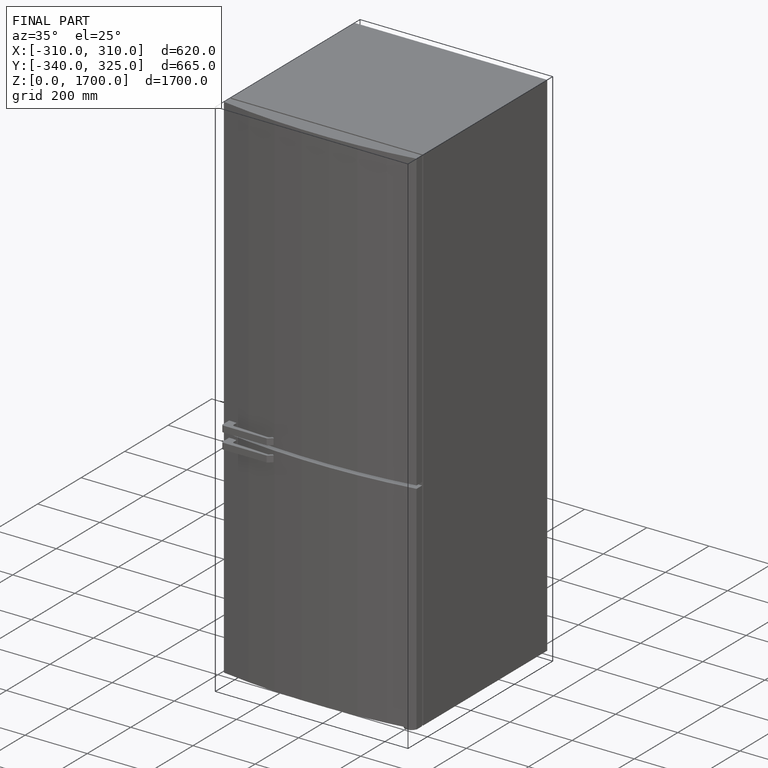
[diagram: finished part — iso view with bounding-box wireframe]
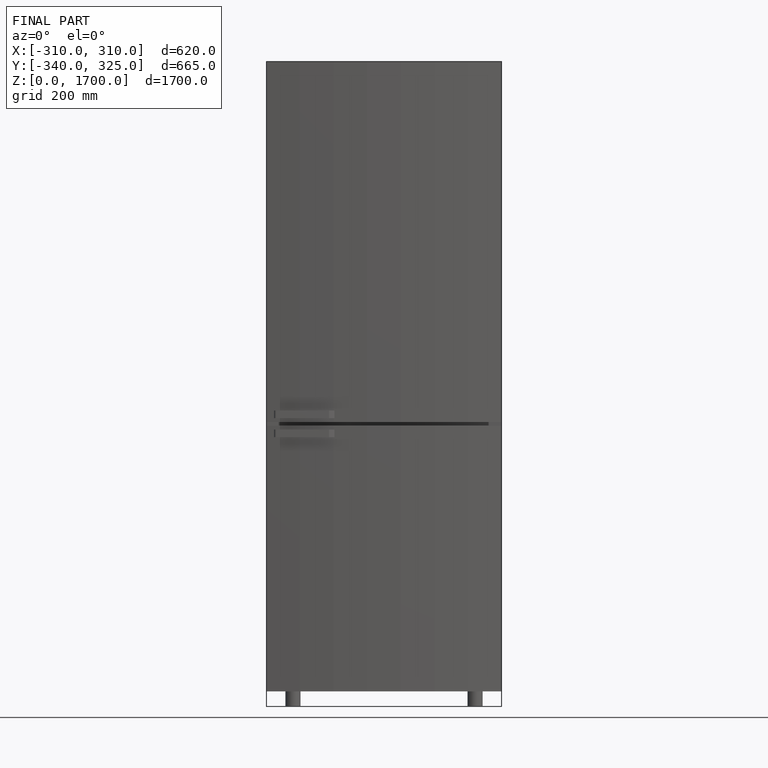
[diagram: finished part — front view with bounding-box wireframe]
